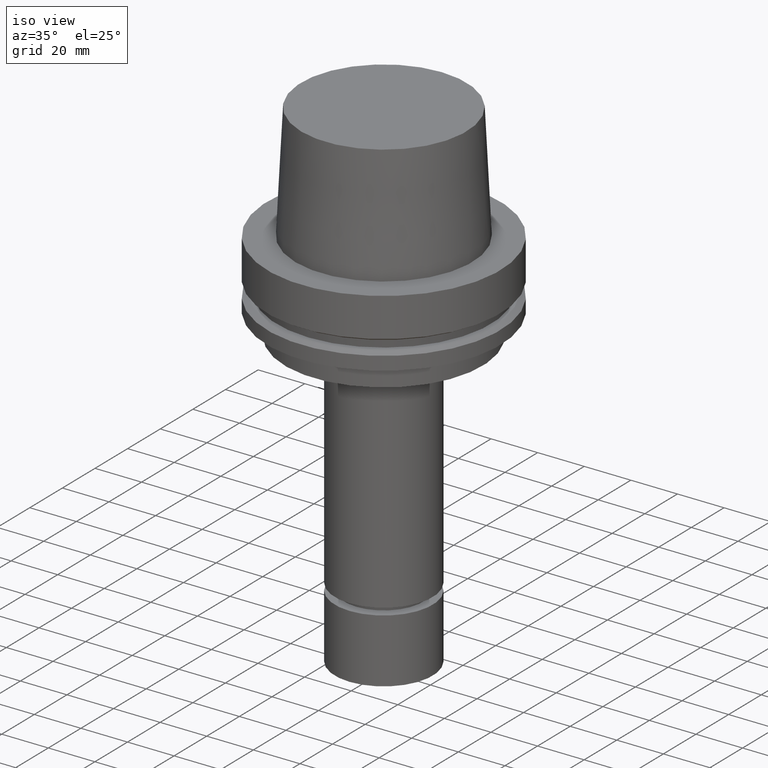
[diagram: clean part render]
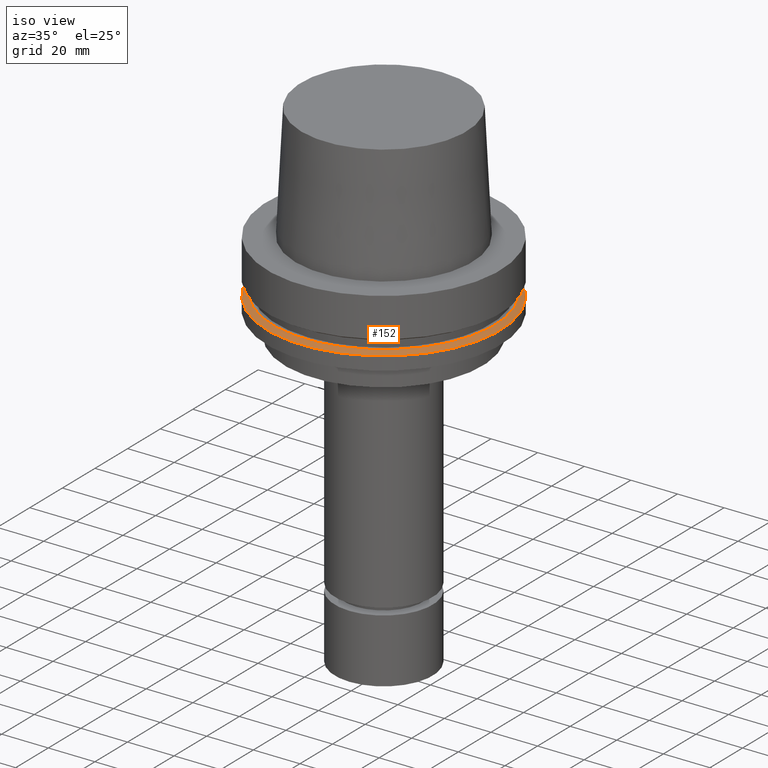
[diagram: same view with one face highlighted and labeled with its STEP entity id]
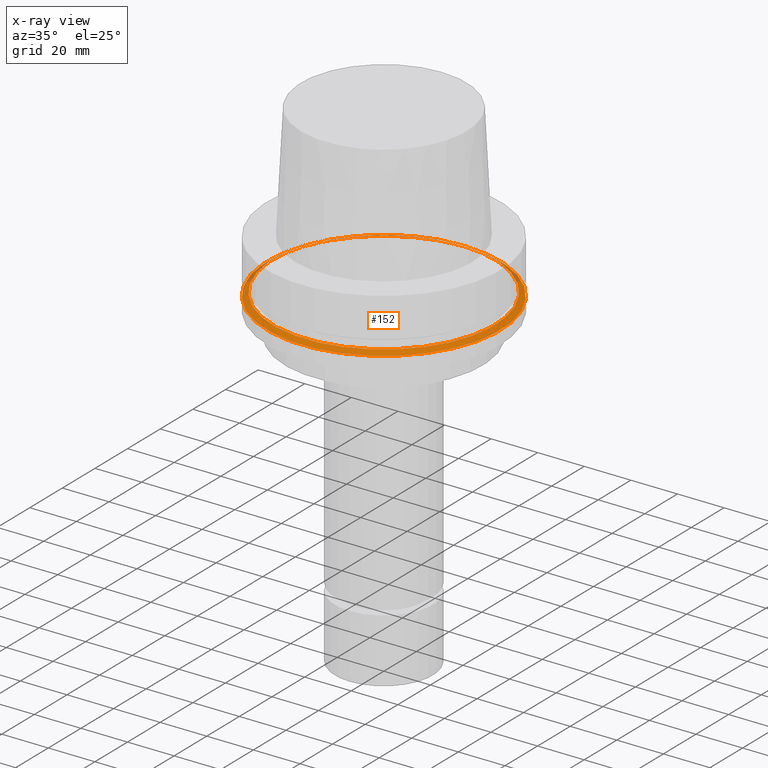
[diagram: x-ray of the same camera — body ghosted, the highlighted face saturated]
A machine part, iso view. The second image highlights one B-rep face of the part: STEP entity #152.
The next image is the same camera in x-ray: the body ghosted, the highlighted face saturated — about 10% of this face is hidden behind the body in this view.
In plain terms, the highlighted conical surface has half-angle 60 deg.
Its self-contained STEP definition (entity closure, byte-faithful):
#102=EDGE_CURVE('Unnamed[1]',#256,#256,#257,.T.);
#152=ADVANCED_FACE('Unnamed[1]',(#331,#332),#333,.T.);
#198=EDGE_CURVE('Unnamed[1]',#403,#403,#404,.T.);
#256=VERTEX_POINT('',#464);
#257=CIRCLE('',#465,47.62259526);
#331=FACE_BOUND('',#555,.T.);
#332=FACE_BOUND('',#556,.T.);
#333=CONICAL_SURFACE('',#557,48.81129763,1.04719755328238);
#403=VERTEX_POINT('',#647);
#404=CIRCLE('',#648,50.0);
#464=CARTESIAN_POINT('',(1.33945743656742E-015,47.62259526,-21.875));
#465=AXIS2_PLACEMENT_3D('',#694,#695,#696);
#555=EDGE_LOOP('',(#776));
#556=EDGE_LOOP('',(#777));
#557=AXIS2_PLACEMENT_3D('',#778,#779,#780);
#647=CARTESIAN_POINT('',(1.42350465615161E-015,50.0,-23.24759526));
#648=AXIS2_PLACEMENT_3D('',#855,#856,#857);
#694=CARTESIAN_POINT('',(1.33945743656742E-015,2.67891487313483E-015,-21.875));
#695=DIRECTION('',(6.12323399573676E-017,1.22464679914735E-016,-1.0));
#696=DIRECTION('',(-1.23259516440783E-032,1.0,1.22464679914735E-016));
#776=ORIENTED_EDGE('',*,*,#198,.F.);
#777=ORIENTED_EDGE('',*,*,#102,.T.);
#778=CARTESIAN_POINT('',(1.38148104635951E-015,2.76296209271903E-015,-22.56129763));
#779=DIRECTION('',(6.12323399573677E-017,1.22464679914735E-016,-1.0));
#780=DIRECTION('',(-1.23259516440783E-032,1.0,1.22464679914735E-016));
#855=CARTESIAN_POINT('',(1.42350465615161E-015,2.84700931230322E-015,-23.24759526));
#856=DIRECTION('',(6.12323399573677E-017,1.22464679914735E-016,-1.0));
#857=DIRECTION('',(-1.23259516440783E-032,1.0,1.22464679914735E-016));